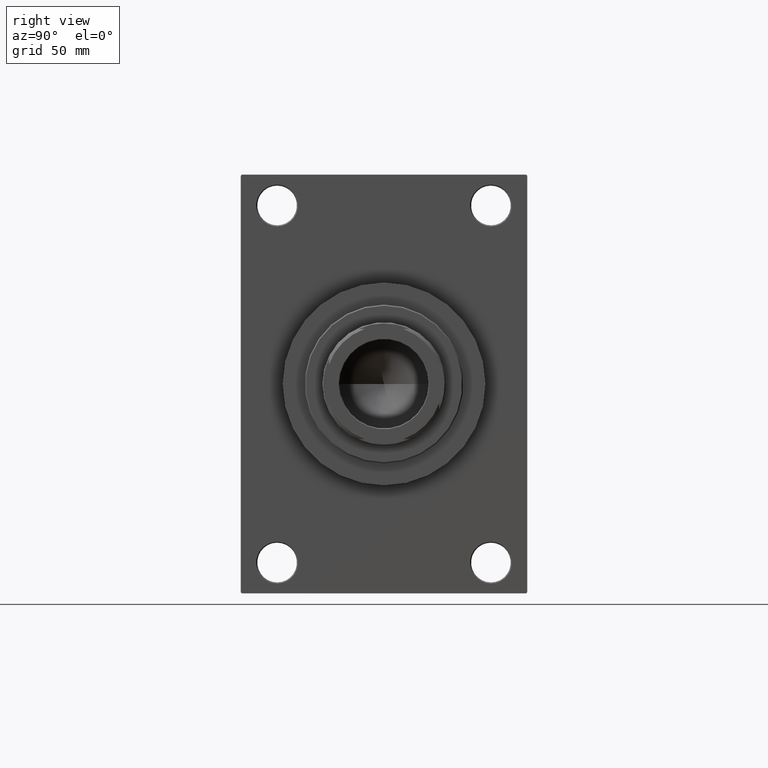
[diagram: clean part render]
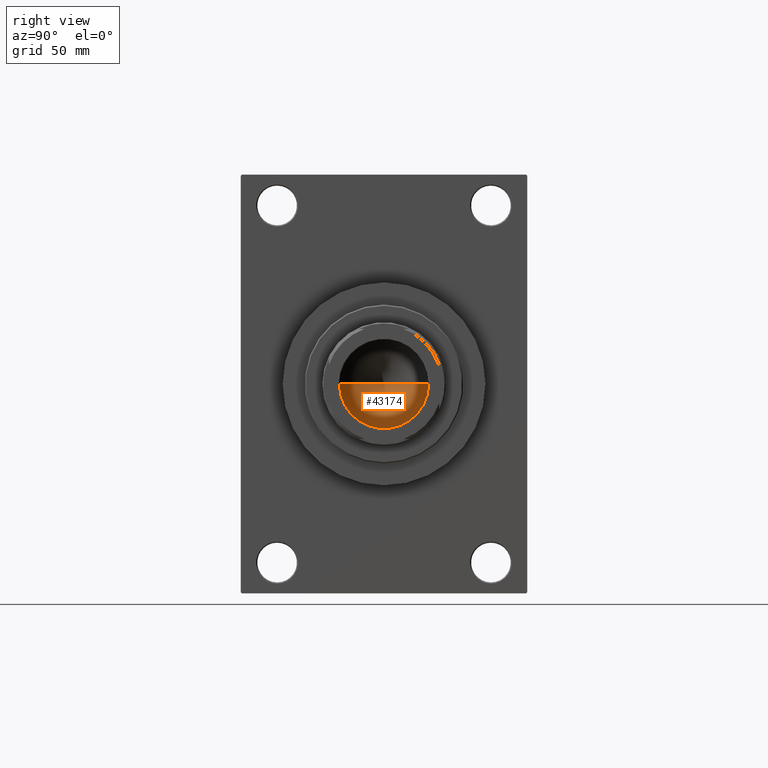
[diagram: same view with one face highlighted and labeled with its STEP entity id]
A machine part, right view. The second image highlights one B-rep face of the part: STEP entity #43174.
In plain terms, the highlighted conical surface has half-angle 59 deg.
Its self-contained STEP definition (entity closure, byte-faithful):
#1767 = CARTESIAN_POINT ( 'NONE',  ( 0.000000000000000000, 0.000000000000000000, 113.0000000000000142 ) ) ;
#8903 = DIRECTION ( 'NONE',  ( 1.000000000000000000, 0.000000000000000000, 0.000000000000000000 ) ) ;
#11188 = CARTESIAN_POINT ( 'NONE',  ( -20.24999999999998934, 2.479909768273389117E-15, 113.0000000000000142 ) ) ;
#12630 = ORIENTED_EDGE ( 'NONE', *, *, #35045, .T. ) ;
#17076 = VERTEX_POINT ( 'NONE', #27530 ) ;
#18739 = ORIENTED_EDGE ( 'NONE', *, *, #37452, .F. ) ;
#20252 = CARTESIAN_POINT ( 'NONE',  ( 0.000000000000000000, 0.000000000000000000, 113.0000000000000142 ) ) ;
#20332 = LINE ( 'NONE', #23231, #22259 ) ;
#20494 = AXIS2_PLACEMENT_3D ( 'NONE', #1767, #45472, #46181 ) ;
#22259 = VECTOR ( 'NONE', #34833, 1000.000000000000000 ) ;
#22644 = VERTEX_POINT ( 'NONE', #23370 ) ;
#23231 = CARTESIAN_POINT ( 'NONE',  ( -20.24999999999998934, 2.479909768273389117E-15, 113.0000000000000142 ) ) ;
#23370 = CARTESIAN_POINT ( 'NONE',  ( 20.24999999999998934, 0.000000000000000000, 113.0000000000000142 ) ) ;
#25841 = DIRECTION ( 'NONE',  ( 0.8571673007021115565, 0.000000000000000000, 0.5150380749100554878 ) ) ;
#27530 = CARTESIAN_POINT ( 'NONE',  ( -1.584115414415908206E-14, 0.000000000000000000, 100.8325724646918928 ) ) ;
#29461 = CARTESIAN_POINT ( 'NONE',  ( 20.24999999999998934, 0.000000000000000000, 113.0000000000000142 ) ) ;
#31688 = EDGE_CURVE ( 'NONE', #22644, #41427, #35942, .T. ) ;
#34833 = DIRECTION ( 'NONE',  ( -0.8571673007021115565, 1.049727191138617710E-16, 0.5150380749100554878 ) ) ;
#35045 = EDGE_CURVE ( 'NONE', #17076, #22644, #43929, .T. ) ;
#35942 = CIRCLE ( 'NONE', #20494, 20.24999999999998934 ) ;
#36043 = CONICAL_SURFACE ( 'NONE', #39101, 20.24999999999998934, 1.029744258676652979 ) ;
#37452 = EDGE_CURVE ( 'NONE', #17076, #41427, #20332, .T. ) ;
#39101 = AXIS2_PLACEMENT_3D ( 'NONE', #20252, #45357, #8903 ) ;
#40607 = EDGE_LOOP ( 'NONE', ( #18739, #12630, #44817 ) ) ;
#41427 = VERTEX_POINT ( 'NONE', #11188 ) ;
#43174 = ADVANCED_FACE ( 'NONE', ( #46304 ), #36043, .F. ) ;
#43757 = VECTOR ( 'NONE', #25841, 1000.000000000000000 ) ;
#43929 = LINE ( 'NONE', #29461, #43757 ) ;
#44817 = ORIENTED_EDGE ( 'NONE', *, *, #31688, .T. ) ;
#45357 = DIRECTION ( 'NONE',  ( -0.000000000000000000, -0.000000000000000000, 1.000000000000000000 ) ) ;
#45472 = DIRECTION ( 'NONE',  ( -0.000000000000000000, -0.000000000000000000, 1.000000000000000000 ) ) ;
#46181 = DIRECTION ( 'NONE',  ( 1.000000000000000000, 0.000000000000000000, 0.000000000000000000 ) ) ;
#46304 = FACE_OUTER_BOUND ( 'NONE', #40607, .T. ) ;